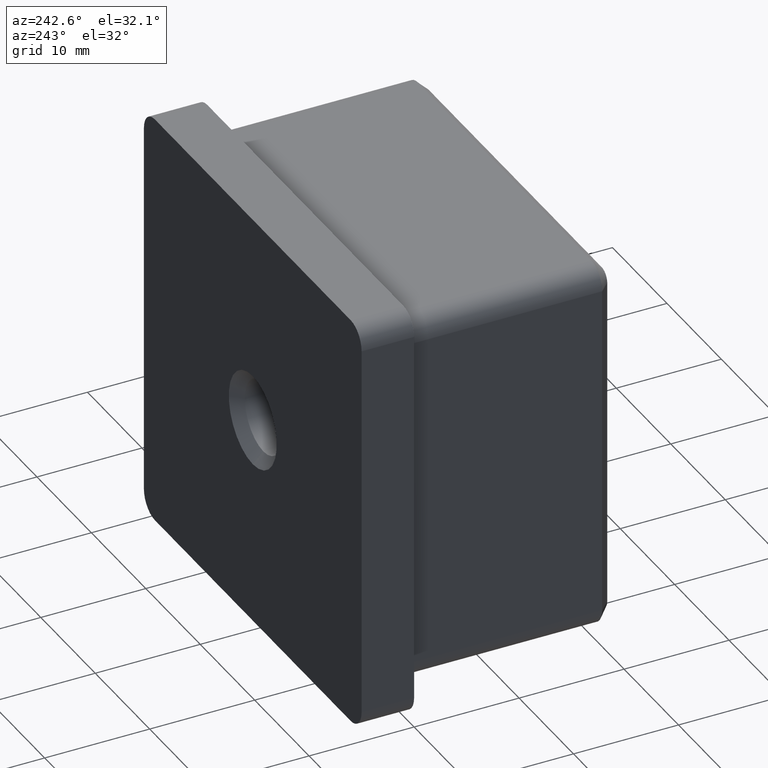
[diagram: clean part render]
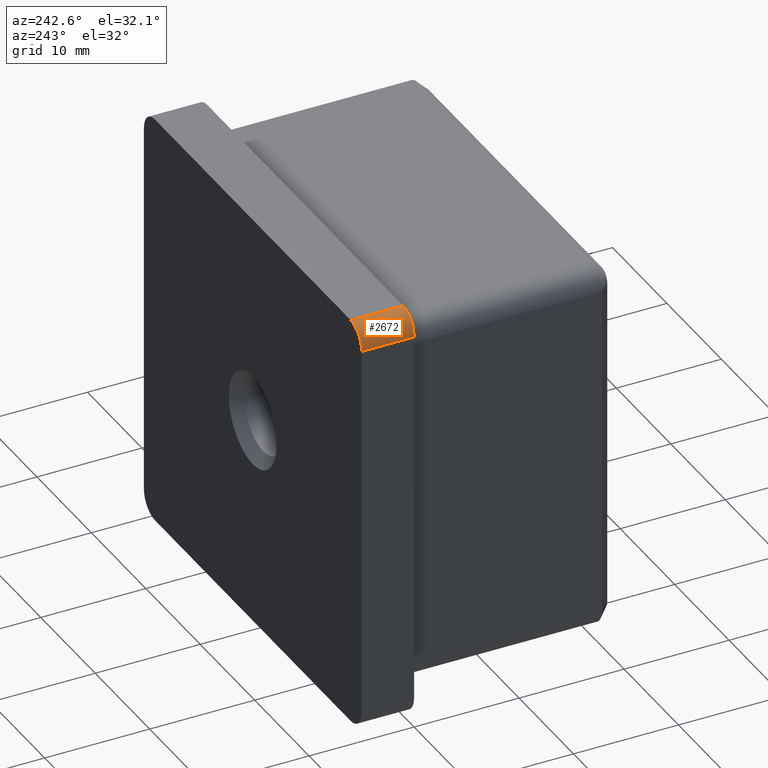
[diagram: same view with one face highlighted and labeled with its STEP entity id]
A machine part, auxiliary view. The second image highlights one B-rep face of the part: STEP entity #2672.
In plain terms, the highlighted cylindrical surface (edge-blend (fillet) strip) has radius 2 mm, axis along (0, -1, 0).
Its self-contained STEP definition (entity closure, byte-faithful):
#265 = VERTEX_POINT ( 'NONE', #10932 ) ;
#278 = DIRECTION ( 'NONE',  ( 0.0000000000000000000, 1.000000000000000000, 0.0000000000000000000 ) ) ;
#609 = DIRECTION ( 'NONE',  ( -0.0000000000000000000, -1.000000000000000000, -0.0000000000000000000 ) ) ;
#624 = ORIENTED_EDGE ( 'NONE', *, *, #15966, .F. ) ;
#970 = LINE ( 'NONE', #17072, #7875 ) ;
#1039 = AXIS2_PLACEMENT_3D ( 'NONE', #7865, #11906, #16265 ) ;
#2138 = CIRCLE ( 'NONE', #3335, 2.000000000000001800 ) ;
#2234 = VERTEX_POINT ( 'NONE', #11274 ) ;
#2383 = EDGE_CURVE ( 'NONE', #265, #2234, #970, .T. ) ;
#2463 = CARTESIAN_POINT ( 'NONE',  ( -17.99999999999999600, 5.000000000000000000, 20.00000000000000400 ) ) ;
#2672 = ADVANCED_FACE ( 'NONE', ( #7171 ), #17654, .T. ) ;
#3335 = AXIS2_PLACEMENT_3D ( 'NONE', #17847, #609, #9338 ) ;
#5495 = VERTEX_POINT ( 'NONE', #6868 ) ;
#6340 = EDGE_CURVE ( 'NONE', #5495, #18081, #16831, .T. ) ;
#6673 = EDGE_LOOP ( 'NONE', ( #12446, #8596, #624, #16157 ) ) ;
#6868 = CARTESIAN_POINT ( 'NONE',  ( -17.99999999999999600, 5.000000000000000000, 20.00000000000000400 ) ) ;
#6920 = DIRECTION ( 'NONE',  ( 0.0000000000000000000, -1.000000000000000000, 0.0000000000000000000 ) ) ;
#7171 = FACE_OUTER_BOUND ( 'NONE', #6673, .T. ) ;
#7865 = CARTESIAN_POINT ( 'NONE',  ( -17.99999999999999600, 5.000000000000000000, 18.00000000000000400 ) ) ;
#7875 = VECTOR ( 'NONE', #8655, 1000.000000000000000 ) ;
#8596 = ORIENTED_EDGE ( 'NONE', *, *, #2383, .F. ) ;
#8655 = DIRECTION ( 'NONE',  ( -0.0000000000000000000, 1.000000000000000000, -0.0000000000000000000 ) ) ;
#8772 = CARTESIAN_POINT ( 'NONE',  ( -17.99999999999999600, 5.000000000000000000, 18.00000000000000400 ) ) ;
#9338 = DIRECTION ( 'NONE',  ( 0.0000000000000000000, 0.0000000000000000000, 1.000000000000000000 ) ) ;
#9913 = CARTESIAN_POINT ( 'NONE',  ( -17.99999999999999600, 0.0000000000000000000, 20.00000000000000400 ) ) ;
#10932 = CARTESIAN_POINT ( 'NONE',  ( -19.99999999999999600, 0.0000000000000000000, 18.00000000000000400 ) ) ;
#11274 = CARTESIAN_POINT ( 'NONE',  ( -19.99999999999999600, 5.000000000000000000, 18.00000000000000400 ) ) ;
#11906 = DIRECTION ( 'NONE',  ( 0.0000000000000000000, -1.000000000000000000, 0.0000000000000000000 ) ) ;
#12446 = ORIENTED_EDGE ( 'NONE', *, *, #15791, .F. ) ;
#13052 = VECTOR ( 'NONE', #6920, 1000.000000000000000 ) ;
#14519 = DIRECTION ( 'NONE',  ( 0.0000000000000000000, 0.0000000000000000000, 1.000000000000000000 ) ) ;
#14556 = AXIS2_PLACEMENT_3D ( 'NONE', #8772, #278, #14519 ) ;
#15260 = CIRCLE ( 'NONE', #14556, 2.000000000000001800 ) ;
#15791 = EDGE_CURVE ( 'NONE', #2234, #5495, #15260, .T. ) ;
#15966 = EDGE_CURVE ( 'NONE', #18081, #265, #2138, .T. ) ;
#16157 = ORIENTED_EDGE ( 'NONE', *, *, #6340, .F. ) ;
#16265 = DIRECTION ( 'NONE',  ( 0.0000000000000000000, 0.0000000000000000000, -1.000000000000000000 ) ) ;
#16831 = LINE ( 'NONE', #2463, #13052 ) ;
#17072 = CARTESIAN_POINT ( 'NONE',  ( -19.99999999999999600, 5.000000000000000000, 18.00000000000000400 ) ) ;
#17654 = CYLINDRICAL_SURFACE ( 'NONE', #1039, 2.000000000000001800 ) ;
#17847 = CARTESIAN_POINT ( 'NONE',  ( -17.99999999999999600, 0.0000000000000000000, 18.00000000000000400 ) ) ;
#18081 = VERTEX_POINT ( 'NONE', #9913 ) ;